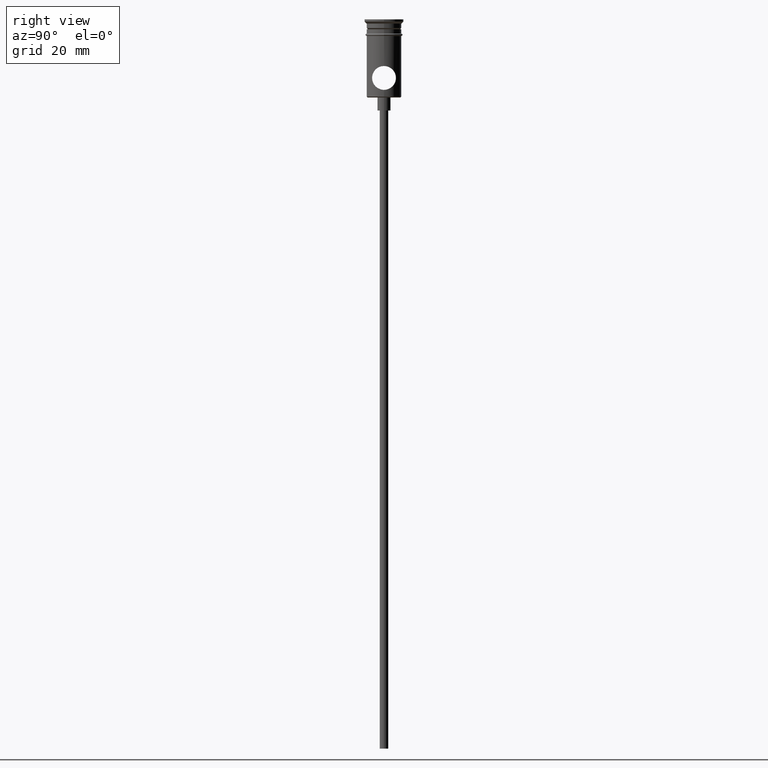
[diagram: clean part render]
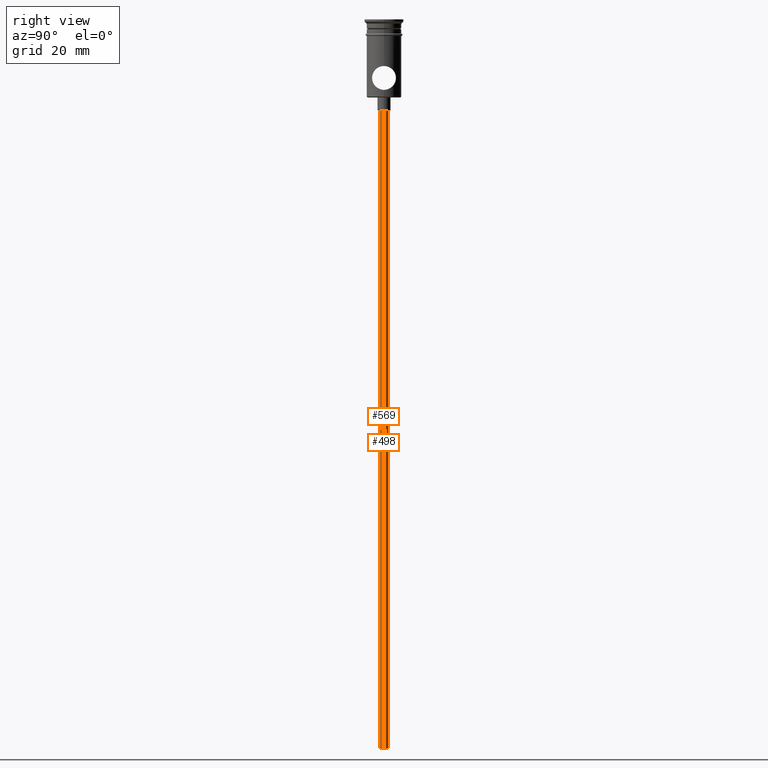
[diagram: same view with one multi-face feature highlighted, each face labeled with its STEP entity id]
A machine part, right view. The highlighted faces form ONE feature: a constant-radius fillet chain: 2 tangent blend faces with common blend radius 1 mm. The faces share edges in the B-rep.
Their STEP definitions:
[1] entity #498 (Cylinder):
#11 = VECTOR ( 'NONE', #1353, 1000.000000000000000 ) ;
#18 = EDGE_CURVE ( 'NONE', #70, #710, #465, .T. ) ;
#49 = EDGE_CURVE ( 'NONE', #1035, #710, #64, .T. ) ;
#64 = CIRCLE ( 'NONE', #317, 0.9999999999999997780 ) ;
#70 = VERTEX_POINT ( 'NONE', #488 ) ;
#142 = ORIENTED_EDGE ( 'NONE', *, *, #584, .T. ) ;
#158 = AXIS2_PLACEMENT_3D ( 'NONE', #237, #1322, #1413 ) ;
#162 = EDGE_CURVE ( 'NONE', #1140, #70, #377, .T. ) ;
#166 = ORIENTED_EDGE ( 'NONE', *, *, #162, .F. ) ;
#213 = CARTESIAN_POINT ( 'NONE',  ( 0.000000000000000000, 0.000000000000000000, -167.9999999999999716 ) ) ;
#237 = CARTESIAN_POINT ( 'NONE',  ( 0.000000000000000000, 0.000000000000000000, -167.9999999999999716 ) ) ;
#289 = CARTESIAN_POINT ( 'NONE',  ( 0.9999999999999997780, 0.000000000000000000, -20.99999999999999645 ) ) ;
#317 = AXIS2_PLACEMENT_3D ( 'NONE', #694, #704, #375 ) ;
#331 = CARTESIAN_POINT ( 'NONE',  ( -0.9999999999999997780, 1.224646799147352961E-16, -167.9999999999999716 ) ) ;
#342 = EDGE_LOOP ( 'NONE', ( #166, #142, #989, #1063 ) ) ;
#375 = DIRECTION ( 'NONE',  ( -1.000000000000000000, 0.000000000000000000, 0.000000000000000000 ) ) ;
#377 = CIRCLE ( 'NONE', #556, 0.9999999999999997780 ) ;
#465 = LINE ( 'NONE', #895, #787 ) ;
#488 = CARTESIAN_POINT ( 'NONE',  ( 0.9999999999999997780, 0.000000000000000000, -167.9999999999999716 ) ) ;
#498 = ADVANCED_FACE ( 'NONE', ( #1196 ), #536, .T. ) ;
#536 = CYLINDRICAL_SURFACE ( 'NONE', #158, 0.9999999999999997780 ) ;
#556 = AXIS2_PLACEMENT_3D ( 'NONE', #213, #615, #952 ) ;
#584 = EDGE_CURVE ( 'NONE', #1140, #1035, #1017, .T. ) ;
#615 = DIRECTION ( 'NONE',  ( 0.000000000000000000, 0.000000000000000000, -1.000000000000000000 ) ) ;
#694 = CARTESIAN_POINT ( 'NONE',  ( 0.000000000000000000, 0.000000000000000000, -20.99999999999999645 ) ) ;
#704 = DIRECTION ( 'NONE',  ( 0.000000000000000000, 0.000000000000000000, -1.000000000000000000 ) ) ;
#710 = VERTEX_POINT ( 'NONE', #289 ) ;
#785 = CARTESIAN_POINT ( 'NONE',  ( -0.9999999999999997780, 1.224646799147352961E-16, -167.9999999999999716 ) ) ;
#787 = VECTOR ( 'NONE', #911, 1000.000000000000000 ) ;
#895 = CARTESIAN_POINT ( 'NONE',  ( 0.9999999999999997780, 0.000000000000000000, -167.9999999999999716 ) ) ;
#911 = DIRECTION ( 'NONE',  ( -0.000000000000000000, -0.000000000000000000, 1.000000000000000000 ) ) ;
#952 = DIRECTION ( 'NONE',  ( -1.000000000000000000, 0.000000000000000000, 0.000000000000000000 ) ) ;
#989 = ORIENTED_EDGE ( 'NONE', *, *, #49, .T. ) ;
#1017 = LINE ( 'NONE', #785, #11 ) ;
#1035 = VERTEX_POINT ( 'NONE', #1255 ) ;
#1063 = ORIENTED_EDGE ( 'NONE', *, *, #18, .F. ) ;
#1140 = VERTEX_POINT ( 'NONE', #331 ) ;
#1196 = FACE_OUTER_BOUND ( 'NONE', #342, .T. ) ;
#1255 = CARTESIAN_POINT ( 'NONE',  ( -0.9999999999999997780, 1.224646799147352961E-16, -20.99999999999999645 ) ) ;
#1322 = DIRECTION ( 'NONE',  ( -0.000000000000000000, -0.000000000000000000, 1.000000000000000000 ) ) ;
#1353 = DIRECTION ( 'NONE',  ( -0.000000000000000000, -0.000000000000000000, 1.000000000000000000 ) ) ;
#1413 = DIRECTION ( 'NONE',  ( 1.000000000000000000, 0.000000000000000000, 0.000000000000000000 ) ) ;
[2] entity #569 (Cylinder):
#11 = VECTOR ( 'NONE', #1353, 1000.000000000000000 ) ;
#18 = EDGE_CURVE ( 'NONE', #70, #710, #465, .T. ) ;
#70 = VERTEX_POINT ( 'NONE', #488 ) ;
#100 = DIRECTION ( 'NONE',  ( -1.000000000000000000, 0.000000000000000000, 0.000000000000000000 ) ) ;
#127 = CYLINDRICAL_SURFACE ( 'NONE', #1339, 0.9999999999999997780 ) ;
#167 = DIRECTION ( 'NONE',  ( -1.000000000000000000, 0.000000000000000000, 0.000000000000000000 ) ) ;
#215 = CARTESIAN_POINT ( 'NONE',  ( 0.000000000000000000, 0.000000000000000000, -20.99999999999999645 ) ) ;
#254 = CIRCLE ( 'NONE', #1317, 0.9999999999999997780 ) ;
#274 = CARTESIAN_POINT ( 'NONE',  ( 0.000000000000000000, 0.000000000000000000, -167.9999999999999716 ) ) ;
#289 = CARTESIAN_POINT ( 'NONE',  ( 0.9999999999999997780, 0.000000000000000000, -20.99999999999999645 ) ) ;
#302 = ORIENTED_EDGE ( 'NONE', *, *, #18, .T. ) ;
#331 = CARTESIAN_POINT ( 'NONE',  ( -0.9999999999999997780, 1.224646799147352961E-16, -167.9999999999999716 ) ) ;
#368 = DIRECTION ( 'NONE',  ( 0.000000000000000000, 0.000000000000000000, -1.000000000000000000 ) ) ;
#465 = LINE ( 'NONE', #895, #787 ) ;
#472 = CARTESIAN_POINT ( 'NONE',  ( 0.000000000000000000, 0.000000000000000000, -167.9999999999999716 ) ) ;
#488 = CARTESIAN_POINT ( 'NONE',  ( 0.9999999999999997780, 0.000000000000000000, -167.9999999999999716 ) ) ;
#569 = ADVANCED_FACE ( 'NONE', ( #662 ), #127, .T. ) ;
#577 = EDGE_CURVE ( 'NONE', #70, #1140, #1131, .T. ) ;
#584 = EDGE_CURVE ( 'NONE', #1140, #1035, #1017, .T. ) ;
#633 = DIRECTION ( 'NONE',  ( 0.000000000000000000, 0.000000000000000000, -1.000000000000000000 ) ) ;
#662 = FACE_OUTER_BOUND ( 'NONE', #706, .T. ) ;
#699 = DIRECTION ( 'NONE',  ( -0.000000000000000000, -0.000000000000000000, 1.000000000000000000 ) ) ;
#706 = EDGE_LOOP ( 'NONE', ( #1345, #1359, #302, #863 ) ) ;
#710 = VERTEX_POINT ( 'NONE', #289 ) ;
#785 = CARTESIAN_POINT ( 'NONE',  ( -0.9999999999999997780, 1.224646799147352961E-16, -167.9999999999999716 ) ) ;
#787 = VECTOR ( 'NONE', #911, 1000.000000000000000 ) ;
#863 = ORIENTED_EDGE ( 'NONE', *, *, #1174, .T. ) ;
#895 = CARTESIAN_POINT ( 'NONE',  ( 0.9999999999999997780, 0.000000000000000000, -167.9999999999999716 ) ) ;
#911 = DIRECTION ( 'NONE',  ( -0.000000000000000000, -0.000000000000000000, 1.000000000000000000 ) ) ;
#1017 = LINE ( 'NONE', #785, #11 ) ;
#1035 = VERTEX_POINT ( 'NONE', #1255 ) ;
#1131 = CIRCLE ( 'NONE', #1313, 0.9999999999999997780 ) ;
#1140 = VERTEX_POINT ( 'NONE', #331 ) ;
#1174 = EDGE_CURVE ( 'NONE', #710, #1035, #254, .T. ) ;
#1249 = DIRECTION ( 'NONE',  ( 1.000000000000000000, 0.000000000000000000, 0.000000000000000000 ) ) ;
#1255 = CARTESIAN_POINT ( 'NONE',  ( -0.9999999999999997780, 1.224646799147352961E-16, -20.99999999999999645 ) ) ;
#1313 = AXIS2_PLACEMENT_3D ( 'NONE', #472, #368, #167 ) ;
#1317 = AXIS2_PLACEMENT_3D ( 'NONE', #215, #633, #100 ) ;
#1339 = AXIS2_PLACEMENT_3D ( 'NONE', #274, #699, #1249 ) ;
#1345 = ORIENTED_EDGE ( 'NONE', *, *, #584, .F. ) ;
#1353 = DIRECTION ( 'NONE',  ( -0.000000000000000000, -0.000000000000000000, 1.000000000000000000 ) ) ;
#1359 = ORIENTED_EDGE ( 'NONE', *, *, #577, .F. ) ;